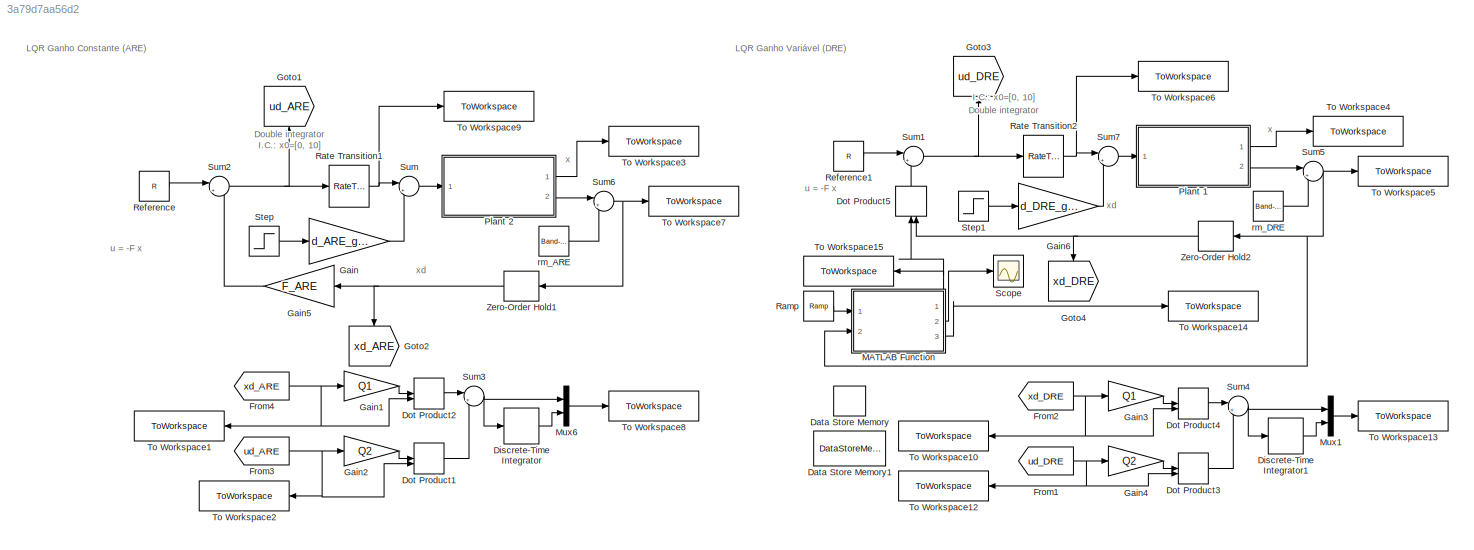
MODEL slx_3a79d7aa56d2
KIND model
CONFIG AbsTol = auto
CONFIG EnableMultiTasking = off
CONFIG FixedStep = auto
CONFIG MaxStep = auto
CONFIG MinStep = auto
CONFIG RelTol = 1e-3
CONFIG SampleTimeConstraint = Unconstrained
CONFIG SolverName = VariableStepAuto
CONFIG StartTime = 0.0
CONFIG StopTime = 5
BLOCK [DataStoreMemory] Data Store Memory
  DataLogging = on
  DataStoreName = Fs
  InitialValue = F0
  OutDataTypeStr = double
  ReadBeforeWriteMsg = warning
  ShowAdditionalParam = off
  SignalType = real
  VectorParams1D = off
  WriteAfterReadMsg = warning
  WriteAfterWriteMsg = warning
BLOCK [DataStoreMemory] Data Store Memory1
  DataLogging = on
  DataStoreName = J_teorico
  OutDataTypeStr = double
  ReadBeforeWriteMsg = warning
  ShowAdditionalParam = off
  SignalType = real
  VectorParams1D = off
  WriteAfterReadMsg = warning
  WriteAfterWriteMsg = warning
BLOCK [DiscreteIntegrator] Discrete-Time Integrator
  ICPrevOutput = DiscIntNeverNeededParam
  ICPrevScaledInput = DiscIntNeverNeededParam
  InitialConditionSetting = Auto
  Ports = [1, 1]
  SampleTime = h
BLOCK [DiscreteIntegrator] Discrete-Time Integrator1
  ICPrevOutput = DiscIntNeverNeededParam
  ICPrevScaledInput = DiscIntNeverNeededParam
  InitialConditionSetting = Auto
  Ports = [1, 1]
  SampleTime = h
BLOCK [DotProduct] Dot Product1
  OutDataTypeStr = Inherit: Inherit via internal rule
BLOCK [DotProduct] Dot Product2
  OutDataTypeStr = Inherit: Inherit via internal rule
BLOCK [DotProduct] Dot Product3
  OutDataTypeStr = Inherit: Inherit via internal rule
BLOCK [DotProduct] Dot Product4
  OutDataTypeStr = Inherit: Inherit via internal rule
BLOCK [DotProduct] Dot Product5
  NameLocation = right
  OutDataTypeStr = Inherit: Inherit via internal rule
BLOCK [From] From1
  GotoTag = ud_DRE
  TagVisibility = global
BLOCK [From] From2
  GotoTag = xd_DRE
  TagVisibility = global
BLOCK [From] From3
  GotoTag = ud_ARE
  TagVisibility = global
BLOCK [From] From4
  GotoTag = xd_ARE
  TagVisibility = global
BLOCK [Gain] Gain
  Gain = d_ARE_gate
BLOCK [Gain] Gain1
  Gain = Q1
  Multiplication = Matrix(K*u)
BLOCK [Gain] Gain2
  Gain = Q2
  Multiplication = Matrix(K*u)
BLOCK [Gain] Gain3
  Gain = Q1
  Multiplication = Matrix(K*u)
BLOCK [Gain] Gain4
  Gain = Q2
  Multiplication = Matrix(K*u)
BLOCK [Gain] Gain5
  Gain = F_ARE
  Multiplication = Matrix(K*u)
BLOCK [Gain] Gain6
  Gain = d_DRE_gate
BLOCK [Goto] Goto1
  GotoTag = ud_ARE
  NameLocation = right
  TagVisibility = global
BLOCK [Goto] Goto2
  GotoTag = xd_ARE
  NameLocation = left
  TagVisibility = global
BLOCK [Goto] Goto3
  GotoTag = ud_DRE
  NameLocation = right
  TagVisibility = global
BLOCK [Goto] Goto4
  GotoTag = xd_DRE
  NameLocation = left
  TagVisibility = global
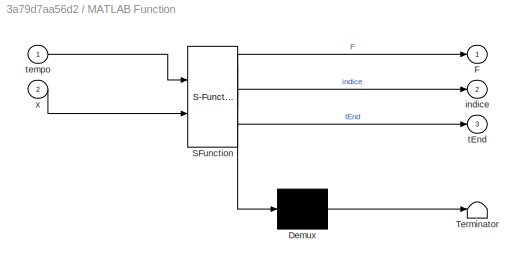
BLOCK [SubSystem] MATLAB Function
  ErrorFcn = Stateflow.Translate.translate
  PermitHierarchicalResolution = ExplicitOnly
  Ports = [2, 3]
  RequestExecContextInheritance = off
  SFBlockType = MATLAB Function
  SystemSampleTime = h
  TreatAsAtomicUnit = on
BLOCK [Demux] MATLAB Function/ Demux 
  Outputs = 1
  Ports = [1, 1]
BLOCK [S-Function] MATLAB Function/ SFunction 
  EnableBusSupport = on
  FunctionName = sf_sfun
  Parameters = Gamma,N,Phi,Q0,Q1,Q2,h,n
  PortCounts = [2 4]
  Ports = [2, 4]
  SFcnIsStateOwnerBlock = off
  SFunctionDeploymentMode = off
  Tag = Stateflow S-Function 1
BLOCK [Terminator] MATLAB Function/ Terminator 
BLOCK [Outport] MATLAB Function/F
BLOCK [Outport] MATLAB Function/indice
  Port = 2
BLOCK [Outport] MATLAB Function/tEnd
  Port = 3
BLOCK [Inport] MATLAB Function/tempo
BLOCK [Inport] MATLAB Function/x
  Port = 2
BLOCK [Mux] Mux1
  DisplayOption = bar
  Inputs = 2
  Ports = [2, 1]
BLOCK [Mux] Mux6
  DisplayOption = bar
  Inputs = 2
  Ports = [2, 1]
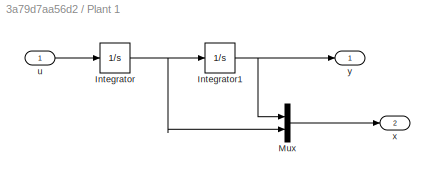
BLOCK [SubSystem] Plant 1
  Ports = [1, 2]
  RequestExecContextInheritance = off
BLOCK [Integrator] Plant 1/Integrator
  InitialCondition = x0(2)
  Ports = [1, 1]
BLOCK [Integrator] Plant 1/Integrator1
  InitialCondition = x0(1)
  Ports = [1, 1]
BLOCK [Mux] Plant 1/Mux
  DisplayOption = bar
  Inputs = 2
  Ports = [2, 1]
BLOCK [Inport] Plant 1/u
BLOCK [Outport] Plant 1/x
  Port = 2
BLOCK [Outport] Plant 1/y
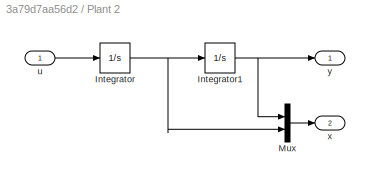
BLOCK [SubSystem] Plant 2
  Ports = [1, 2]
  RequestExecContextInheritance = off
BLOCK [Integrator] Plant 2/Integrator
  InitialCondition = x0(2)
  Ports = [1, 1]
BLOCK [Integrator] Plant 2/Integrator1
  InitialCondition = x0(1)
  Ports = [1, 1]
BLOCK [Mux] Plant 2/Mux
  DisplayOption = bar
  Inputs = 2
  Ports = [2, 1]
BLOCK [Inport] Plant 2/u
BLOCK [Outport] Plant 2/x
  Port = 2
BLOCK [Outport] Plant 2/y
BLOCK [Reference] Ramp  REF=simulink/Sources/Ramp
  Ports = [0, 1]
  SourceBlock = simulink/Sources/Ramp
  SourceProductBaseCode = SL
  SourceType = Ramp
BLOCK [RateTransition] Rate Transition1
  Integrity = off
  OutPortSampleTime = h
BLOCK [RateTransition] Rate Transition2
  Integrity = off
  OutPortSampleTime = h
BLOCK [Constant] Reference
  SampleTime = h
  Value = R
BLOCK [Constant] Reference1
  SampleTime = h
  Value = R
BLOCK [Scope] Scope
  Floating = off
  NumInputPorts = 1
  Ports = [1]
  ScopeSpecificationString = Simulink.scopes.TimeScopeBlockCfg('CurrentConfiguration', extmgr.ConfigurationSet(extmgr.Configuration('Core','General UI',true),extmgr.Configuration('Core','Source UI',true),extmgr.Configuration('Sources','WiredSimulink',true),extmgr.Configuration('Visuals','Time Domain',true,'SerializedDisplays',{struct('MinYLimReal','-1.375','MaxYLimReal','22.375','YLabelReal','','MinYLimMag','0.00000','MaxYLim...<+1334ch>
BLOCK [Step] Step
  After = d_ARE
  SampleTime = 0
  Time = 0
BLOCK [Step] Step1
  After = d_DRE
  SampleTime = 0
  Time = 0
BLOCK [Sum] Sum
  Inputs = |++
  Ports = [2, 1]
BLOCK [Sum] Sum1
  Inputs = |+-
  Ports = [2, 1]
BLOCK [Sum] Sum2
  Inputs = |+-
  Ports = [2, 1]
BLOCK [Sum] Sum3
  Inputs = |++
  Ports = [2, 1]
BLOCK [Sum] Sum4
  Inputs = |++
  Ports = [2, 1]
BLOCK [Sum] Sum5
  Inputs = |++
  Ports = [2, 1]
BLOCK [Sum] Sum6
  Inputs = |++
  Ports = [2, 1]
BLOCK [Sum] Sum7
  Inputs = |++
  Ports = [2, 1]
BLOCK [ToWorkspace] To Workspace1
  FixptAsFi = on
  MaxDataPoints = inf
  NameLocation = top
  Ports = [1]
  SampleTime = -1
  SaveFormat = Timeseries
  VariableName = xd_ARE
BLOCK [ToWorkspace] To Workspace10
  FixptAsFi = on
  MaxDataPoints = inf
  NameLocation = top
  Ports = [1]
  SampleTime = -1
  SaveFormat = Timeseries
  VariableName = xd_DRE
BLOCK [ToWorkspace] To Workspace12
  FixptAsFi = on
  MaxDataPoints = inf
  NameLocation = top
  Ports = [1]
  SampleTime = -1
  SaveFormat = Timeseries
  VariableName = ud_DRE
BLOCK [ToWorkspace] To Workspace13
  FixptAsFi = on
  MaxDataPoints = inf
  Ports = [1]
  SampleTime = h
  SaveFormat = Timeseries
  VariableName = J_DRE
BLOCK [ToWorkspace] To Workspace14
  FixptAsFi = on
  MaxDataPoints = inf
  Ports = [1]
  SampleTime = h
  SaveFormat = Timeseries
  VariableName = tempo_DRE
BLOCK [ToWorkspace] To Workspace15
  FixptAsFi = on
  MaxDataPoints = inf
  NameLocation = top
  Ports = [1]
  SampleTime = -1
  SaveFormat = Timeseries
  VariableName = F_DRE
BLOCK [ToWorkspace] To Workspace2
  FixptAsFi = on
  MaxDataPoints = inf
  NameLocation = top
  Ports = [1]
  SampleTime = -1
  SaveFormat = Timeseries
  VariableName = ud_ARE
BLOCK [ToWorkspace] To Workspace3
  FixptAsFi = on
  MaxDataPoints = inf
  Ports = [1]
  SampleTime = -1
  SaveFormat = Timeseries
  VariableName = y_ARE
BLOCK [ToWorkspace] To Workspace4
  FixptAsFi = on
  MaxDataPoints = inf
  Ports = [1]
  SampleTime = -1
  SaveFormat = Timeseries
  VariableName = y_DRE
BLOCK [ToWorkspace] To Workspace5
  FixptAsFi = on
  MaxDataPoints = inf
  Ports = [1]
  SampleTime = -1
  SaveFormat = Timeseries
  VariableName = x_DRE
BLOCK [ToWorkspace] To Workspace6
  FixptAsFi = on
  MaxDataPoints = inf
  Ports = [1]
  SampleTime = -1
  SaveFormat = Timeseries
  VariableName = u_DRE
BLOCK [ToWorkspace] To Workspace7
  FixptAsFi = on
  MaxDataPoints = inf
  Ports = [1]
  SampleTime = -1
  SaveFormat = Timeseries
  VariableName = x_ARE
BLOCK [ToWorkspace] To Workspace8
  FixptAsFi = on
  MaxDataPoints = inf
  Ports = [1]
  SampleTime = h
  SaveFormat = Timeseries
  VariableName = J_ARE
BLOCK [ToWorkspace] To Workspace9
  FixptAsFi = on
  MaxDataPoints = inf
  Ports = [1]
  SampleTime = -1
  SaveFormat = Timeseries
  VariableName = u_ARE
BLOCK [ZeroOrderHold] Zero-Order Hold1
  SampleTime = h
BLOCK [ZeroOrderHold] Zero-Order Hold2
  SampleTime = h
BLOCK [Reference] rm_ARE  REF=simulink/Sources/Band-Limited
White Noise
  Ports = [0, 1]
  SourceBlock = simulink/Sources/Band-Limited\nWhite Noise
  SourceProductBaseCode = SL
  SourceType = Band-Limited White Noise.
BLOCK [Reference] rm_DRE  REF=simulink/Sources/Band-Limited
White Noise
  Ports = [0, 1]
  SourceBlock = simulink/Sources/Band-Limited\nWhite Noise
  SourceProductBaseCode = SL
  SourceType = Band-Limited White Noise.
ANNOTATION (root): xd
ANNOTATION (root): x
ANNOTATION (root): u = -F x
ANNOTATION (root): Double integrator I.C.: x0=[0, 10]
ANNOTATION (root): LQR Ganho Constante (ARE)
ANNOTATION (root): LQR Ganho Variável (DRE)
LINE Discrete-Time Integrator1:1 -> Mux1:2
LINE Discrete-Time Integrator:1 -> Mux6:2
LINE Dot Product1:1 -> Sum3:2
LINE Dot Product2:1 -> Sum3:1
LINE Dot Product3:1 -> Sum4:2
LINE Dot Product4:1 -> Sum4:1
LINE Dot Product5:1 -> Sum1:2
NET From1:1 -> Dot Product3:2, Gain4:1, To Workspace12:1
NET From2:1 -> Dot Product4:2, Gain3:1, To Workspace10:1
NET From3:1 -> Dot Product1:2, Gain2:1, To Workspace2:1
NET From4:1 -> Dot Product2:2, Gain1:1, To Workspace1:1
LINE Gain1:1 -> Dot Product2:1
LINE Gain2:1 -> Dot Product1:1
LINE Gain3:1 -> Dot Product4:1
LINE Gain4:1 -> Dot Product3:1
LINE Gain5:1 -> Sum2:2
LINE Gain6:1 -> Sum7:2
LINE Gain:1 -> Sum:2
NET MATLAB Function:1 -> Dot Product5:1, To Workspace15:1
LINE MATLAB Function:2 -> Scope:1
LINE MATLAB Function:3 -> To Workspace14:1
LINE Mux1:1 -> To Workspace13:1
LINE Mux6:1 -> To Workspace8:1
NET Plant 1/Integrator1:1 -> Plant 1/Mux:1, Plant 1/y:1
NET Plant 1/Integrator:1 -> Plant 1/Integrator1:1, Plant 1/Mux:2
LINE Plant 1/Mux:1 -> Plant 1/x:1
LINE Plant 1/u:1 -> Plant 1/Integrator:1
LINE Plant 1:1 -> To Workspace4:1
LINE Plant 1:2 -> Sum5:1
NET Plant 2/Integrator1:1 -> Plant 2/Mux:1, Plant 2/y:1
NET Plant 2/Integrator:1 -> Plant 2/Integrator1:1, Plant 2/Mux:2
LINE Plant 2/Mux:1 -> Plant 2/x:1
LINE Plant 2/u:1 -> Plant 2/Integrator:1
LINE Plant 2:1 -> To Workspace3:1
LINE Plant 2:2 -> Sum6:1
LINE Ramp:1 -> MATLAB Function:1
NET Rate Transition1:1 -> Sum:1, To Workspace9:1
NET Rate Transition2:1 -> Sum7:1, To Workspace6:1
LINE Reference1:1 -> Sum1:1
LINE Reference:1 -> Sum2:1
LINE Step1:1 -> Gain6:1
LINE Step:1 -> Gain:1
NET Sum1:1 -> Goto3:1, Rate Transition2:1
NET Sum2:1 -> Goto1:1, Rate Transition1:1
NET Sum3:1 -> Discrete-Time Integrator:1, Mux6:1
NET Sum4:1 -> Discrete-Time Integrator1:1, Mux1:1
NET Sum5:1 -> MATLAB Function:2, To Workspace5:1, Zero-Order Hold2:1
NET Sum6:1 -> To Workspace7:1, Zero-Order Hold1:1
LINE Sum7:1 -> Plant 1:1
LINE Sum:1 -> Plant 2:1
NET Zero-Order Hold1:1 -> Gain5:1, Goto2:1
NET Zero-Order Hold2:1 -> Dot Product5:2, Goto4:1
LINE rm_ARE:1 -> Sum6:2
LINE rm_DRE:1 -> Sum5:2
note: NET lines group one-source signal fan-out (src -> all destinations, sorted); 1:1 wires keep LINE
CHART MATLAB Function states=1 transitions=1
  STATE_LABEL 'eML_blk_kernel()'
  STATE_LABEL "SCRIPT:\nfunction [F, indice, tEnd] = DRE(tempo, n, Q0, Q2, Q1, N, Gamma, Phi, h, x)\nglobal Fs J_teorico\n\ntStart = tic;\n\nindice = 1 + mod(floor(tempo/h),N);\nif (indice == 1)\n    S = zeros(n,n,1,N+1);\n    S(:,:,1,N) = Q0;\n    for j=(N):-1:1\n        S(:,:,1,j) = Phi' * S(:,:,1,j+1) * Phi + Q1 - (Phi' * S(:,:,1,j+1) * Gamma) * inv(Gamma' * S(:,:,1,j+1) * Gamma + Q2) * (Gamma' * S(:,:,1,j+1) * Phi);\n  ...<+183ch>"
CHART  states=0 transitions=0
